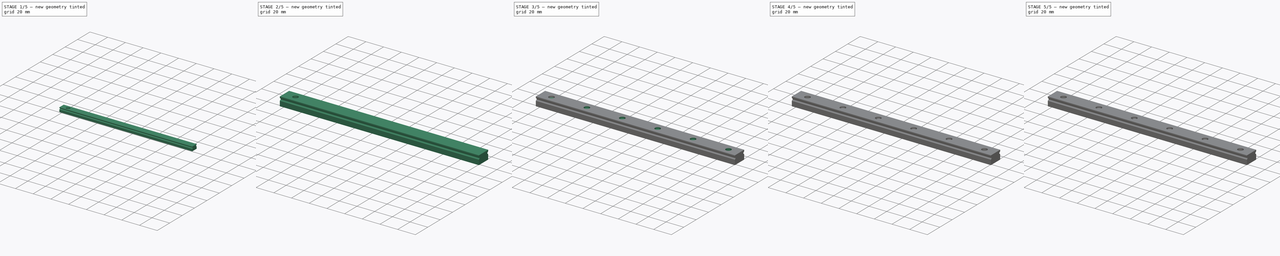
[diagram: build sequence overview — one tinted view per stage of 5, left to right]
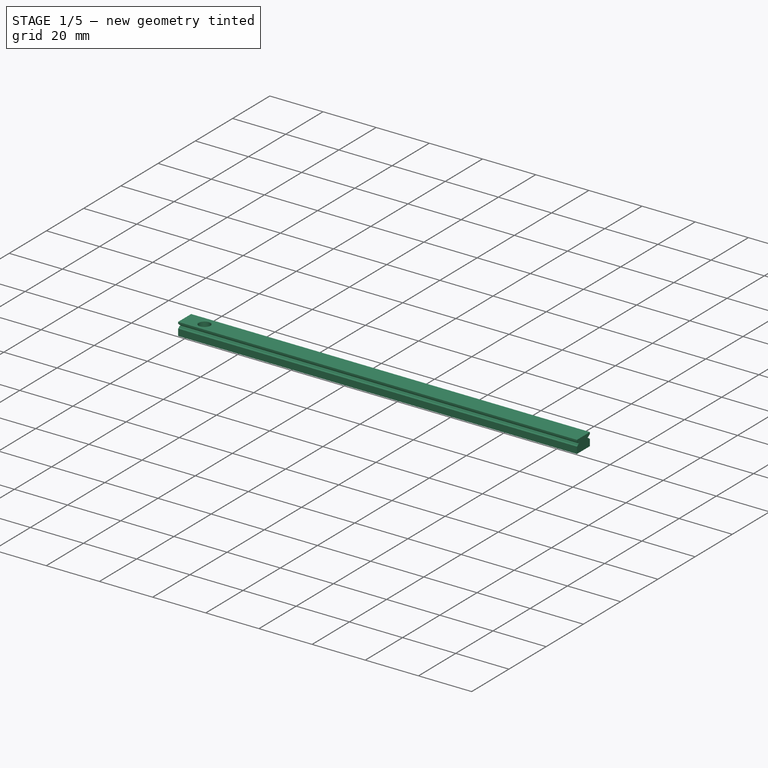
[diagram: stage 1 of 5 — iso view after this stage's code; geometry added in this stage tinted green]
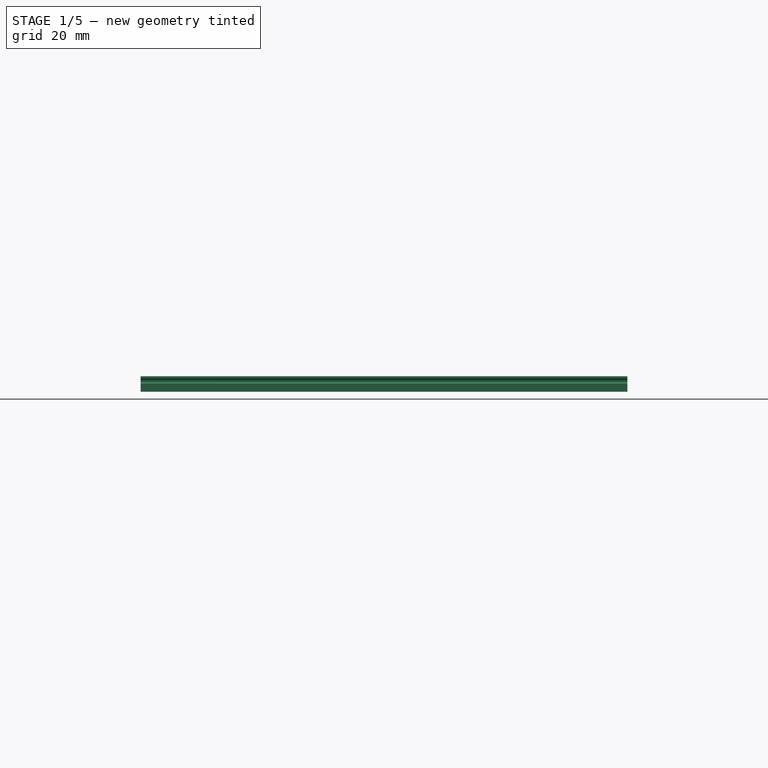
[diagram: stage 1 of 5 — front view after this stage's code; geometry added in this stage tinted green]
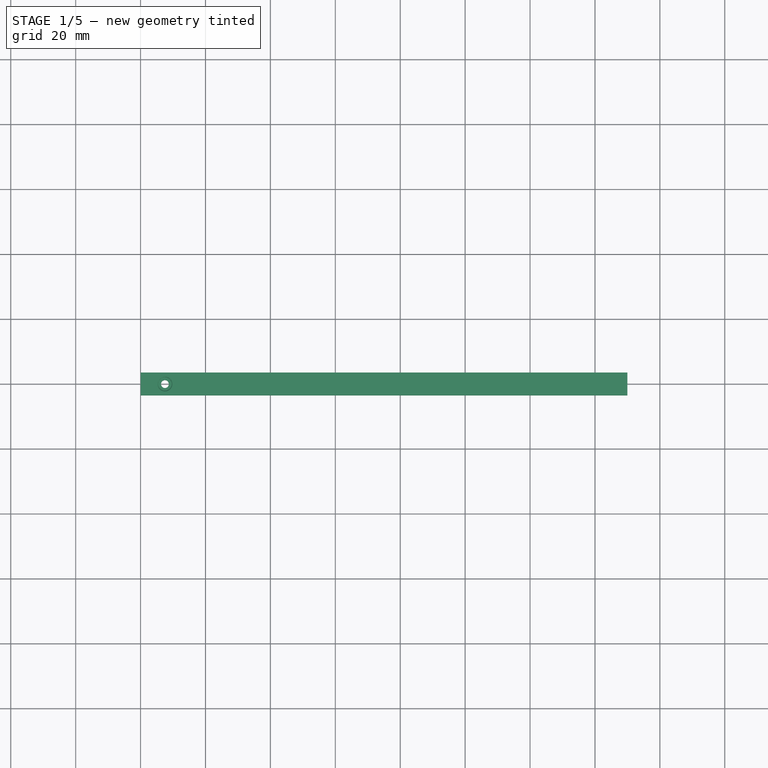
[diagram: stage 1 of 5 — top view after this stage's code; geometry added in this stage tinted green]
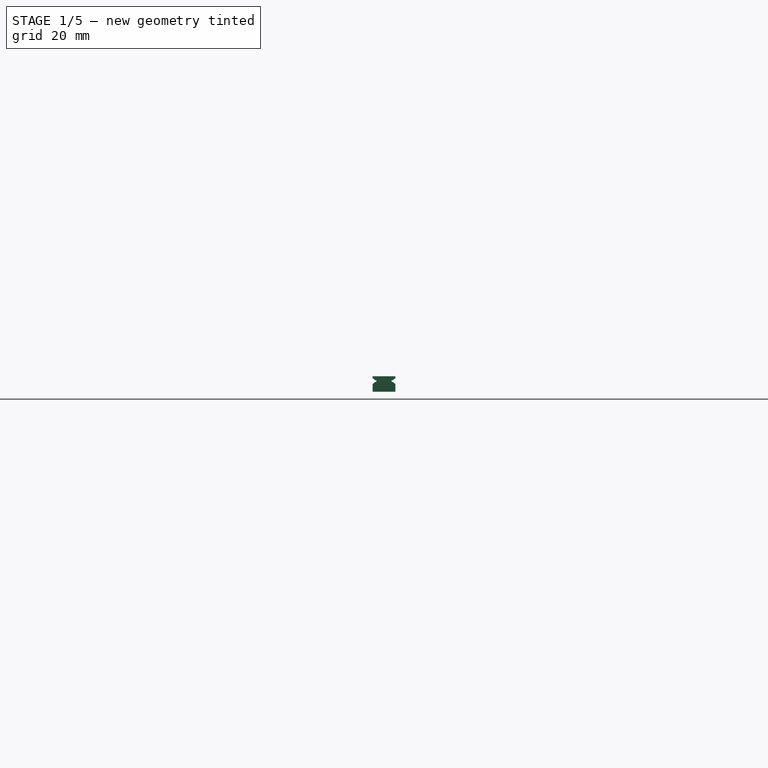
[diagram: stage 1 of 5 — right view after this stage's code; geometry added in this stage tinted green]
FCSTD DOCUMENT  (FreeCAD 0.20R29603 (Git))
Label: mgn9_v2
License: Public Domain
LicenseURL: http://en.wikipedia.org/wiki/Public_domain
objects: Sketcher::SketchObject×16, PartDesign::Pocket×12, App::FeaturePython×8, PartDesign::Pad×4, Spreadsheet::Sheet×4, PartDesign::Chamfer×4, PartDesign::LinearPattern×4, PartDesign::Body×4, App::Part×4, App::TextDocument×2, Part::Feature×1
note: 65 computed .brp shape members not serialized (recipe doc carries the construction recipe); baked Part::Feature solids carry a one-line shape summary decoded from their .brp

FEATURE [PartDesign::Body] Body003  label="Hiwin rail MGN15R"
  Group = -> [Sketch012,Pad006,Sketch013,Pocket011,Sketch014,Pocket012,Sketch015,Pocket013,Chamfer003,LinearPattern003]
  Origin = -> Origin006
  Tip = -> LinearPattern003
FEATURE [Spreadsheet::Sheet] Spreadsheet003  label="Spreadsheet_MGN15"
  cells = A1=Length rail; B1=Длина рельсы, мм; C1(length)=225; A2=Holes distance; B2=Расстояние между отверстиями; C2(holes_distance)=40; A3=Holes number; B3=Количество отверстий; C3(holes_number)==floor((length - min_offset * 2) / holes_distance) + 1; A4=Distance end holes; B4=Расстояние между центрами крайних отверстий; C4(distance)==holes_distance * (holes_number - 1); A5=Offset 1st hole; B5=Позиция 1го отверстия; C5(offset)==(length - distance) / 2; A6=Min offset 1st hole; B6=Минимальное расстояние от края до центра 1го отверстия; C6(min_offset)=5
FEATURE [App::Part] Part002004  label="Hiwin MGN15"
  Group = -> [Body003,Spreadsheet003,Dimension004,Dimension005]
  Origin = -> Origin007
  Placement = pos=(0,-200,0) rot=(0,0,1;0rad)
FEATURE [App::FeaturePython] Dimension006  label="Dimension_Length_MGN7"  # Draft dimension (typed FeaturePython)
  Diameter = false
  Dimline = (0,50,6.5)
  Direction = (0,0,0)
  Distance = 150
  End = (150,0,6.5)
  Normal = (-3e-16,4e-16,1)
  Start = (0,0,6.5)
  expr: .End.x = Pad007.Length
FEATURE [App::FeaturePython] Dimension007  label="Dimension_Offset_MGN7"  # Draft dimension (typed FeaturePython)
  Diameter = false
  Dimline = (0,20,6.5)
  Direction = (0,0,0)
  Distance = 7.5
  End = (7.5,0,6.5)
  Normal = (-3e-16,4e-16,1)
  Start = (0,0,6.5)
  expr: .End.x = Spreadsheet004.offset
FEATURE [Sketcher::SketchObject] Sketch016
  FullyConstrained = true
  MapMode = 5
  Placement = pos=(0,0,0) rot=(0.57735,0.57735,0.57735;2.0944rad)
  Support = -> [YZ_Plane008]
  sketch-geometry (4):
    g0: LineSegment StartX=-3.5 StartY=0 StartZ=0 EndX=3.5 EndY=0 EndZ=0
    g1: LineSegment StartX=3.5 StartY=0 StartZ=0 EndX=3.5 EndY=4.8 EndZ=0
    g2: LineSegment StartX=3.5 StartY=4.8 StartZ=0 EndX=-3.5 EndY=4.8 EndZ=0
    g3: LineSegment StartX=-3.5 StartY=4.8 StartZ=0 EndX=-3.5 EndY=0 EndZ=0
  constraints (11):
    c: Coincident(g0,g1)
    c: Coincident(g1,g2)
    c: Coincident(g2,g3)
    c: Coincident(g3,g0)
    c: Horizontal(g0)
    c: Horizontal(g2)
    c: Vertical(g1)
    c: Vertical(g3)
    c: Symmetric(g0,g0,g-1)
    c: DistanceX(g0,g0) = 7  'width'
    c: DistanceY(g1,g1) = 4.8  'height'
FEATURE [PartDesign::Pad] Pad007
  Direction = (1,-2e-16,3e-16)
  Length = 150
  Length2 = 10
  Placement = pos=(0,0,0) rot=(0.57735,0.57735,0.57735;2.0944rad)
  Profile = -> Sketch016
  ReferenceAxis = -> Sketch016 [N_Axis]
  Type = 0
  expr: Length = Spreadsheet004.length
FEATURE [Sketcher::SketchObject] Sketch017
  FullyConstrained = true
  MapMode = 5
  Placement = pos=(0,0,0) rot=(-0.57735,0.57735,0.57735;4.18879rad)
  Support = -> [YZ_Plane008]
  expr: Constraints[12] = 3.05 + 0.5 / 2
  expr: Constraints[13] = <<Sketch016>>.Constraints.width / 2 + 0.1mm
  sketch-geometry (10):
    g0: ArcOfCircle CenterX=-3.6 CenterY=3.3 CenterZ=0 NormalX=0 NormalY=0 NormalZ=1 AngleXU=0 Radius=0.8 StartAngle=0.317824 EndAngle=5.96536
    g1: LineSegment StartX=-2.84007 StartY=3.55 StartZ=0 EndX=-2.34007 EndY=3.55 EndZ=0
    g2: LineSegment StartX=-2.34007 StartY=3.55 StartZ=0 EndX=-2.34007 EndY=3.05 EndZ=0
    g3: LineSegment StartX=-2.34007 StartY=3.05 StartZ=0 EndX=-2.84007 EndY=3.05 EndZ=0
    g4: LineSegment StartX=-3.6 StartY=3.3 StartZ=0 EndX=-2.34007 EndY=3.3 EndZ=0
    g5: ArcOfCircle CenterX=3.6 CenterY=3.3 CenterZ=0 NormalX=0 NormalY=0 NormalZ=1 AngleXU=0 Radius=0.8 StartAngle=3.45942 EndAngle=9.10695
    g6: LineSegment StartX=2.84007 StartY=3.55 StartZ=0 EndX=2.34007 EndY=3.55 EndZ=0
    g7: LineSegment StartX=2.34007 StartY=3.55 StartZ=0 EndX=2.34007 EndY=3.05 EndZ=0
    g8: LineSegment StartX=2.34007 StartY=3.05 StartZ=0 EndX=2.84007 EndY=3.05 EndZ=0
    g9: LineSegment StartX=3.6 StartY=3.3 StartZ=0 EndX=2.34007 EndY=3.3 EndZ=0
  constraints (29):
    c: Horizontal(g1)
    c: Coincident(g2,g1)
    c: Vertical(g2)
    c: Coincident(g3,g2)
    c: Horizontal(g3)
    c: Coincident(g4,g0)
    c: Horizontal(g4)
    c: Symmetric(g2,g1,g4)
    c: Coincident(g0,g3)
    c: Coincident(g0,g1)
    c: DistanceY(g2,g2) = 0.5
    c: DistanceX(g1,g1) = 0.5
    c: DistanceY(g-1,g0) = 3.3
    c: DistanceX(g0,g-1) = 3.6
    c: Horizontal(g6)
    c: Coincident(g7,g6)
    c: Vertical(g7)
    c: Coincident(g8,g7)
    c: Horizontal(g8)
    c: Coincident(g9,g5)
    c: Horizontal(g9)
    c: Symmetric(g7,g6,g9)
    c: Coincident(g5,g8)
    c: Coincident(g5,g6)
    c: Diameter(g5) = 1.6
    c: Symmetric(g4,g9,g-2)
    c: Equal(g2,g7)
    c: Equal(g1,g6)
    c: Equal(g0,g5)
FEATURE [PartDesign::Pocket] Pocket014  label="Balls cut003"
  BaseFeature = -> Pad007
  Direction = (1,-2e-16,3e-16)
  Length = 5
  Length2 = 5
  Placement = pos=(0,0,0) rot=(0.57735,0.57735,0.57735;2.0944rad)
  Profile = -> Sketch017
  ReferenceAxis = -> Sketch017 [N_Axis]
  Type = 1
FEATURE [Sketcher::SketchObject] Sketch018
  AttachmentOffset = pos=(7.5,0,0) rot=(0,0,1;1.5708rad)
  FullyConstrained = true
  MapMode = 5
  Placement = pos=(7.5,0,0) rot=(0,0,1;1.5708rad)
  Support = -> [XY_Plane008]
  expr: .AttachmentOffset.Base.x = Spreadsheet004.offset
  sketch-geometry (1):
    g0: Circle CenterX=0 CenterY=0 CenterZ=0 NormalX=0 NormalY=0 NormalZ=1 AngleXU=0 Radius=1.2
  constraints (2):
    c: Coincident(g0,g-1)
    c: Diameter(g0) = 2.4
FEATURE [PartDesign::Pocket] Pocket015  label="Screw hole003"
  BaseFeature = -> Pocket014
  Direction = (0,0,-1)
  Length = 5
  Length2 = 5
  Midplane = true
  Placement = pos=(0,0,0) rot=(0.57735,0.57735,0.57735;2.0944rad)
  Profile = -> Sketch018
  ReferenceAxis = -> Sketch018 [N_Axis]
  Type = 1
FEATURE [Sketcher::SketchObject] Sketch019
  AttachmentOffset = pos=(7.5,0,4.8) rot=(0,0,1;1.5708rad)
  FullyConstrained = true
  MapMode = 5
  Placement = pos=(7.5,0,4.8) rot=(0,0,1;1.5708rad)
  Support = -> [XY_Plane008]
  expr: .AttachmentOffset.Base.x = Spreadsheet004.offset
  expr: .AttachmentOffset.Base.z = Sketch016.Constraints.height
  sketch-geometry (1):
    g0: Circle CenterX=0 CenterY=0 CenterZ=0 NormalX=0 NormalY=0 NormalZ=1 AngleXU=0 Radius=2.1
  constraints (2):
    c: Coincident(g0,g-1)
    c: Diameter(g0) = 4.2
FEATURE [PartDesign::Pocket] Pocket016  label="Screw head cut003"
  BaseFeature = -> Pocket015
  Direction = (0,0,-1)
  Length = 3.5
  Length2 = 5
  Placement = pos=(0,0,0) rot=(0.57735,0.57735,0.57735;2.0944rad)
  Profile = -> Sketch019
  ReferenceAxis = -> Sketch019 [N_Axis]
  Type = 0
FEATURE [PartDesign::Chamfer] Chamfer004
  Angle = 45
  Base = -> Pocket016 [Edge47]
  BaseFeature = -> Pocket016
  ChamferType = 0
  FlipDirection = false
  Placement = pos=(0,0,0) rot=(0.57735,0.57735,0.57735;2.0944rad)
  Size = 0.2
  Size2 = 1
  SupportTransform = false
  UseAllEdges = false
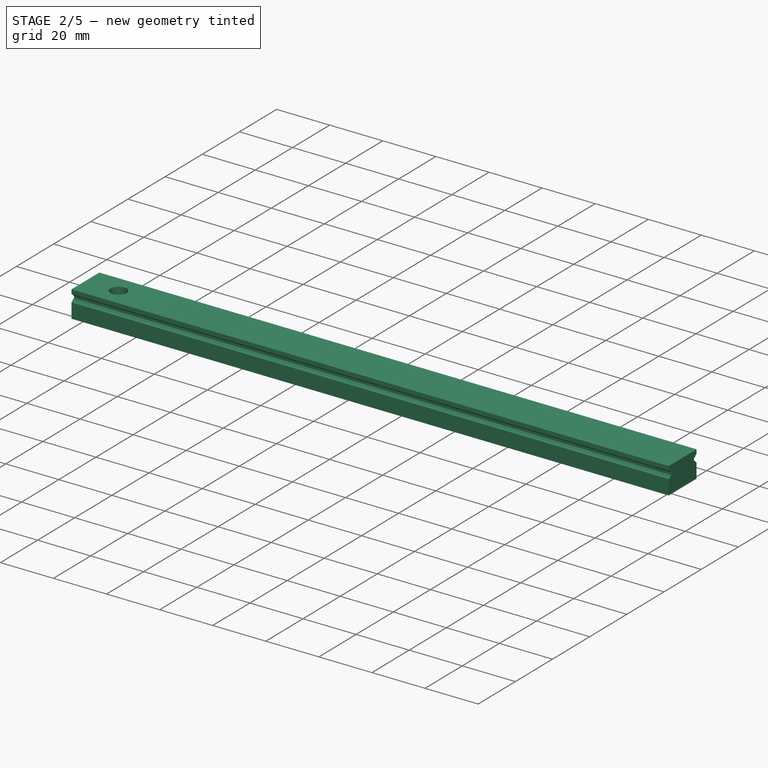
[diagram: stage 2 of 5 — iso view after this stage's code; geometry added in this stage tinted green]
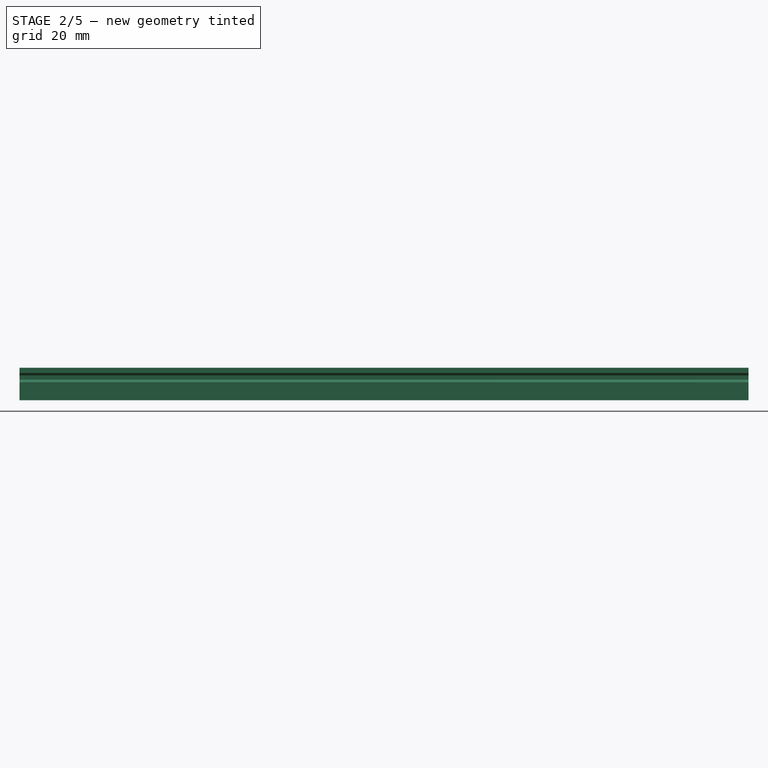
[diagram: stage 2 of 5 — front view after this stage's code; geometry added in this stage tinted green]
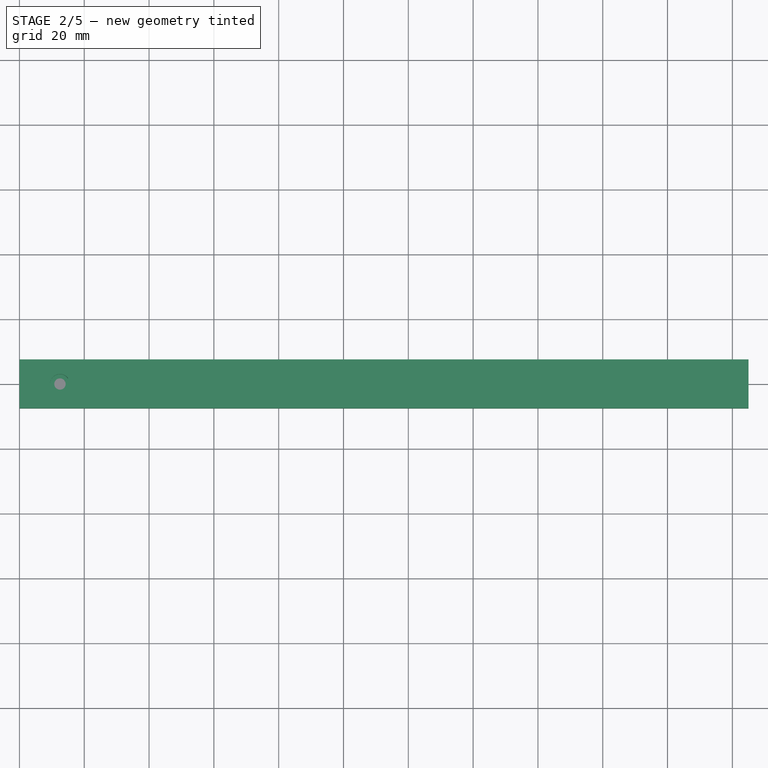
[diagram: stage 2 of 5 — top view after this stage's code; geometry added in this stage tinted green]
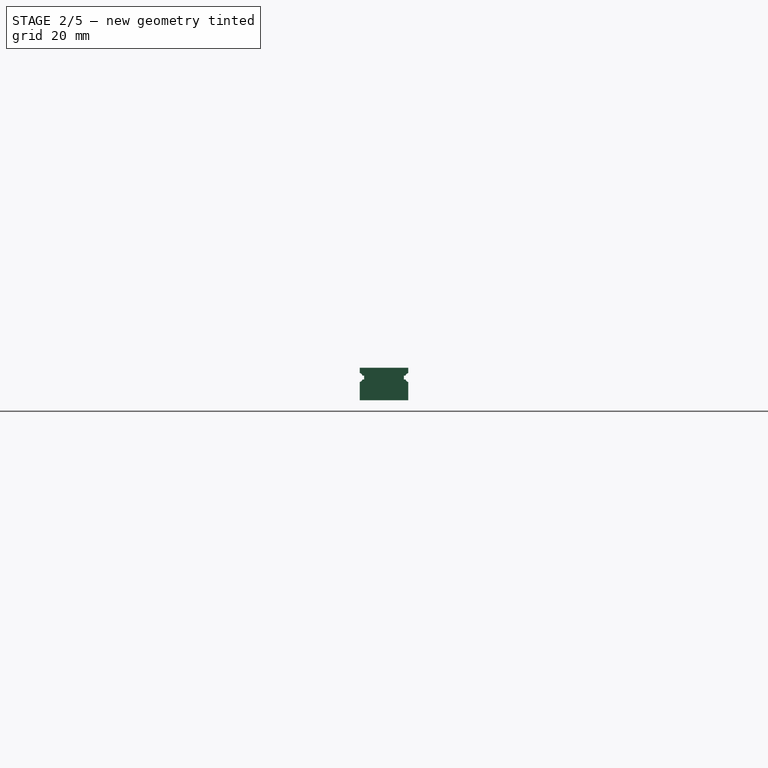
[diagram: stage 2 of 5 — right view after this stage's code; geometry added in this stage tinted green]
FEATURE [PartDesign::Body] Body002  label="Hiwin rail MGN12R"
  Group = -> [Sketch008,Pad005,Sketch009,Pocket008,Sketch010,Pocket009,Sketch011,Pocket010,Chamfer002,LinearPattern002]
  Origin = -> Origin004
  Tip = -> LinearPattern002
FEATURE [Spreadsheet::Sheet] Spreadsheet002  label="Spreadsheet_MGN12"
  cells = A1=Length rail; B1=Длина рельсы, мм; C1(length)=200; A2=Holes distance; B2=Расстояние между отверстиями; C2(holes_distance)=25; A3=Holes number; B3=Количество отверстий; C3(holes_number)==floor((length - min_offset * 2) / holes_distance) + 1; A4=Distance end holes; B4=Расстояние между центрами крайних отверстий; C4(distance)==holes_distance * (holes_number - 1); A5=Offset 1st hole; B5=Позиция 1го отверстия; C5(offset)==(length - distance) / 2; A6=Min offset 1st hole; B6=Минимальное расстояние от края до центра 1го отверстия; C6(min_offset)=5
FEATURE [App::Part] Part002003  label="Hiwin MGN12"
  Group = -> [Body002,Spreadsheet002,Dimension002,Dimension003]
  Origin = -> Origin005
  Placement = pos=(0,-100,0) rot=(0,0,1;0rad)
FEATURE [App::FeaturePython] Dimension004  label="Dimension_Length_MGN15"  # Draft dimension (typed FeaturePython)
  Diameter = false
  Dimline = (0,50,6.5)
  Direction = (0,0,0)
  Distance = 225
  End = (225,0,6.5)
  Normal = (-3e-16,4e-16,1)
  Start = (0,0,6.5)
  expr: .End.x = Pad006.Length
FEATURE [App::FeaturePython] Dimension005  label="Dimension_Offset_MGN15"  # Draft dimension (typed FeaturePython)
  Diameter = false
  Dimline = (0,20,6.5)
  Direction = (0,0,0)
  Distance = 12.5
  End = (12.5,0,6.5)
  Normal = (-3e-16,4e-16,1)
  Start = (0,0,6.5)
  expr: .End.x = Spreadsheet003.offset
FEATURE [Sketcher::SketchObject] Sketch012
  FullyConstrained = true
  MapMode = 5
  Placement = pos=(0,0,0) rot=(0.57735,0.57735,0.57735;2.0944rad)
  Support = -> [YZ_Plane006]
  sketch-geometry (4):
    g0: LineSegment StartX=-7.5 StartY=0 StartZ=0 EndX=7.5 EndY=0 EndZ=0
    g1: LineSegment StartX=7.5 StartY=0 StartZ=0 EndX=7.5 EndY=10 EndZ=0
    g2: LineSegment StartX=7.5 StartY=10 StartZ=0 EndX=-7.5 EndY=10 EndZ=0
    g3: LineSegment StartX=-7.5 StartY=10 StartZ=0 EndX=-7.5 EndY=0 EndZ=0
  constraints (11):
    c: Coincident(g0,g1)
    c: Coincident(g1,g2)
    c: Coincident(g2,g3)
    c: Coincident(g3,g0)
    c: Horizontal(g0)
    c: Horizontal(g2)
    c: Vertical(g1)
    c: Vertical(g3)
    c: Symmetric(g0,g0,g-1)
    c: DistanceX(g0,g0) = 15  'width'
    c: DistanceY(g1,g1) = 10  'height'
FEATURE [PartDesign::Pad] Pad006
  Direction = (1,-2e-16,3e-16)
  Length = 225
  Length2 = 10
  Placement = pos=(0,0,0) rot=(0.57735,0.57735,0.57735;2.0944rad)
  Profile = -> Sketch012
  ReferenceAxis = -> Sketch012 [N_Axis]
  Type = 0
  expr: Length = Spreadsheet003.length
FEATURE [Sketcher::SketchObject] Sketch013
  FullyConstrained = true
  MapMode = 5
  Placement = pos=(0,0,0) rot=(-0.57735,0.57735,0.57735;4.18879rad)
  Support = -> [YZ_Plane006]
  expr: Constraints[13] = <<Sketch012>>.Constraints.width / 2 + 0.5mm
  sketch-geometry (10):
    g0: ArcOfCircle CenterX=-8 CenterY=7 CenterZ=0 NormalX=0 NormalY=0 NormalZ=1 AngleXU=0 Radius=1.5 StartAngle=0.411517 EndAngle=5.87167
    g1: LineSegment StartX=-6.62523 StartY=7.6 StartZ=0 EndX=-6.12523 EndY=7.6 EndZ=0
    g2: LineSegment StartX=-6.12523 StartY=7.6 StartZ=0 EndX=-6.12523 EndY=6.4 EndZ=0
    g3: LineSegment StartX=-6.12523 StartY=6.4 StartZ=0 EndX=-6.62523 EndY=6.4 EndZ=0
    g4: LineSegment StartX=-8 StartY=7 StartZ=0 EndX=-6.12523 EndY=7 EndZ=0
    g5: ArcOfCircle CenterX=8 CenterY=7 CenterZ=0 NormalX=0 NormalY=0 NormalZ=1 AngleXU=0 Radius=1.5 StartAngle=3.55311 EndAngle=9.01326
    g6: LineSegment StartX=6.62523 StartY=7.6 StartZ=0 EndX=6.12523 EndY=7.6 EndZ=0
    g7: LineSegment StartX=6.12523 StartY=7.6 StartZ=0 EndX=6.12523 EndY=6.4 EndZ=0
    g8: LineSegment StartX=6.12523 StartY=6.4 StartZ=0 EndX=6.62523 EndY=6.4 EndZ=0
    g9: LineSegment StartX=8 StartY=7 StartZ=0 EndX=6.12523 EndY=7 EndZ=0
  constraints (29):
    c: Horizontal(g1)
    c: Coincident(g2,g1)
    c: Vertical(g2)
    c: Coincident(g3,g2)
    c: Horizontal(g3)
    c: Coincident(g4,g0)
    c: Horizontal(g4)
    c: Symmetric(g2,g1,g4)
    c: Coincident(g0,g3)
    c: Coincident(g0,g1)
    c: DistanceY(g2,g2) = 1.2
    c: DistanceX(g1,g1) = 0.5
    c: DistanceY(g-1,g0) = 7
    c: DistanceX(g0,g-1) = 8
    c: Horizontal(g6)
    c: Coincident(g7,g6)
    c: Vertical(g7)
    c: Coincident(g8,g7)
    c: Horizontal(g8)
    c: Coincident(g9,g5)
    c: Horizontal(g9)
    c: Symmetric(g7,g6,g9)
    c: Coincident(g5,g8)
    c: Coincident(g5,g6)
    c: Diameter(g5) = 3
    c: Symmetric(g4,g9,g-2)
    c: Equal(g2,g7)
    c: Equal(g1,g6)
    c: Equal(g0,g5)
FEATURE [PartDesign::Pocket] Pocket011  label="Balls cut002"
  BaseFeature = -> Pad006
  Direction = (1,-2e-16,3e-16)
  Length = 5
  Length2 = 5
  Placement = pos=(0,0,0) rot=(0.57735,0.57735,0.57735;2.0944rad)
  Profile = -> Sketch013
  ReferenceAxis = -> Sketch013 [N_Axis]
  Type = 1
FEATURE [Sketcher::SketchObject] Sketch014
  AttachmentOffset = pos=(12.5,0,0) rot=(0,0,1;1.5708rad)
  FullyConstrained = true
  MapMode = 5
  Placement = pos=(12.5,0,0) rot=(0,0,1;1.5708rad)
  Support = -> [XY_Plane006]
  expr: .AttachmentOffset.Base.x = Spreadsheet003.offset
  sketch-geometry (1):
    g0: Circle CenterX=0 CenterY=0 CenterZ=0 NormalX=0 NormalY=0 NormalZ=1 AngleXU=0 Radius=1.75
  constraints (2):
    c: Coincident(g0,g-1)
    c: Diameter(g0) = 3.5
FEATURE [PartDesign::Pocket] Pocket012  label="Screw hole002"
  BaseFeature = -> Pocket011
  Direction = (0,0,-1)
  Length = 5
  Length2 = 5
  Midplane = true
  Placement = pos=(0,0,0) rot=(0.57735,0.57735,0.57735;2.0944rad)
  Profile = -> Sketch014
  ReferenceAxis = -> Sketch014 [N_Axis]
  Type = 1
FEATURE [Sketcher::SketchObject] Sketch015
  AttachmentOffset = pos=(12.5,0,10) rot=(0,0,1;1.5708rad)
  FullyConstrained = true
  MapMode = 5
  Placement = pos=(12.5,0,10) rot=(0,0,1;1.5708rad)
  Support = -> [XY_Plane006]
  expr: .AttachmentOffset.Base.x = Spreadsheet003.offset
  expr: .AttachmentOffset.Base.z = Sketch012.Constraints.height
  sketch-geometry (1):
    g0: Circle CenterX=0 CenterY=0 CenterZ=0 NormalX=0 NormalY=0 NormalZ=1 AngleXU=0 Radius=3
  constraints (2):
    c: Coincident(g0,g-1)
    c: Diameter(g0) = 6
FEATURE [PartDesign::Pocket] Pocket013  label="Screw head cut002"
  BaseFeature = -> Pocket012
  Direction = (0,0,-1)
  Length = 4.5
  Length2 = 5
  Placement = pos=(0,0,0) rot=(0.57735,0.57735,0.57735;2.0944rad)
  Profile = -> Sketch015
  ReferenceAxis = -> Sketch015 [N_Axis]
  Type = 0
FEATURE [PartDesign::LinearPattern] LinearPattern004
  BaseFeature = -> Chamfer004
  Direction = -> Sketch018 [V_Axis]
  Length = 135
  Occurrences = 10
  Originals = -> [Pocket015,Pocket016,Chamfer004]
  Placement = pos=(0,0,0) rot=(0.57735,0.57735,0.57735;2.0944rad)
  Reversed = true
  expr: Length = Spreadsheet004.distance
  expr: Occurrences = Spreadsheet004.holes_number
FEATURE [PartDesign::Body] Body004  label="Hiwin rail MGN7R"
  Group = -> [Sketch016,Pad007,Sketch017,Pocket014,Sketch018,Pocket015,Sketch019,Pocket016,Chamfer004,LinearPattern004]
  Origin = -> Origin008
  Tip = -> LinearPattern004
FEATURE [Spreadsheet::Sheet] Spreadsheet004  label="Spreadsheet_MGN7"
  cells = A1=Length rail; B1=Длина рельсы, мм; C1(length)=150; A2=Holes distance; B2=Расстояние между отверстиями; C2(holes_distance)=15; A3=Holes number; B3=Количество отверстий; C3(holes_number)==floor((length - min_offset * 2) / holes_distance) + 1; A4=Distance end holes; B4=Расстояние между центрами крайних отверстий; C4(distance)==holes_distance * (holes_number - 1); A5=Offset 1st hole; B5=Позиция 1го отверстия; C5(offset)==(length - distance) / 2; A6=Min offset 1st hole; B6=Минимальное расстояние от края до центра 1го отверстия; C6(min_offset)=5
FEATURE [App::Part] Part002005  label="Hiwin MGN7"
  Group = -> [Body004,Spreadsheet004,Dimension006,Dimension007]
  Origin = -> Origin009
  Placement = pos=(0,100,0) rot=(0,0,1;0rad)
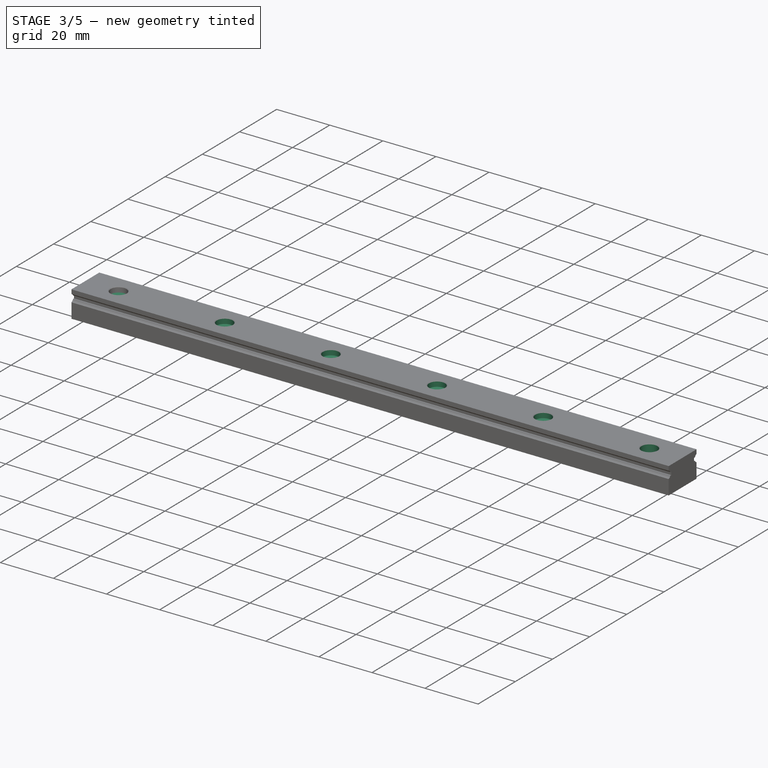
[diagram: stage 3 of 5 — iso view after this stage's code; geometry added in this stage tinted green]
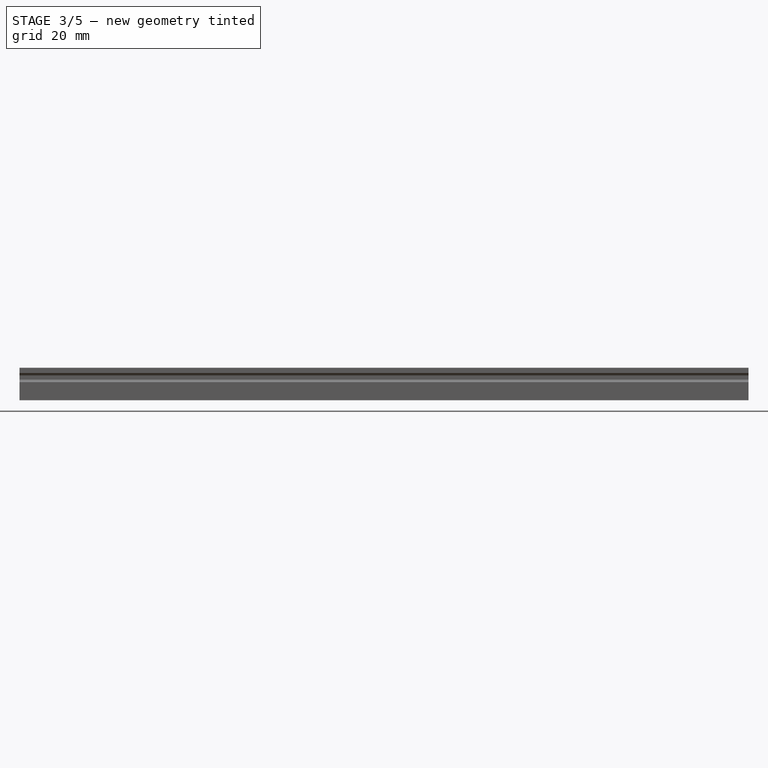
[diagram: stage 3 of 5 — front view after this stage's code; geometry added in this stage tinted green]
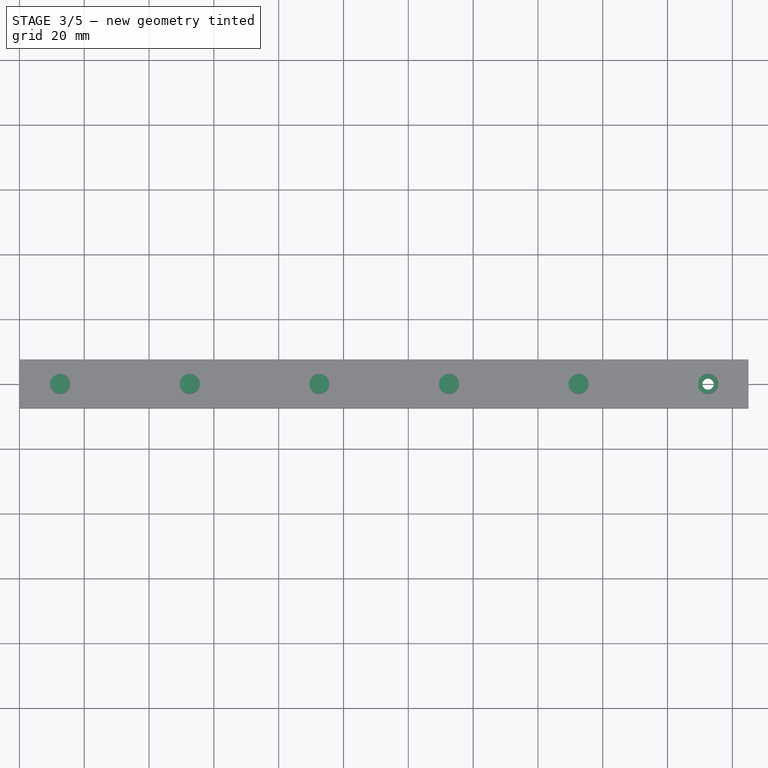
[diagram: stage 3 of 5 — top view after this stage's code; geometry added in this stage tinted green]
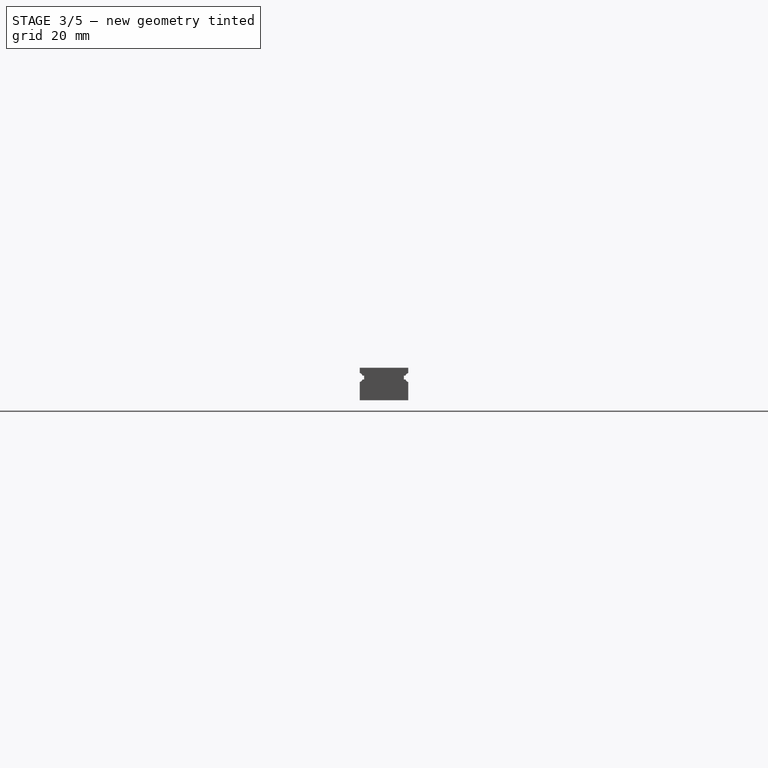
[diagram: stage 3 of 5 — right view after this stage's code; geometry added in this stage tinted green]
FEATURE [PartDesign::Body] Body001  label="Hiwin rail MGN9R"
  Group = -> [Sketch004,Pad004,Sketch005,Pocket005,Sketch006,Pocket006,Sketch007,Pocket007,Chamfer001,LinearPattern001]
  Origin = -> Origin002
  Tip = -> LinearPattern001
FEATURE [App::FeaturePython] Dimension  label="Dimension_Length_MGN9"  # Draft dimension (typed FeaturePython)
  Diameter = false
  Dimline = (0,50,6.5)
  Direction = (0,0,0)
  Distance = 175
  End = (175,0,6.5)
  Normal = (-3e-16,4e-16,1)
  Start = (0,0,6.5)
  expr: .End.x = Pad004.Length
FEATURE [App::FeaturePython] Dimension001  label="Dimension_Offset_MGN9"  # Draft dimension (typed FeaturePython)
  Diameter = false
  Dimline = (0,20,6.5)
  Direction = (0,0,0)
  Distance = 7.5
  End = (7.5,0,6.5)
  Normal = (-3e-16,4e-16,1)
  Start = (0,0,6.5)
  expr: .End.x = Spreadsheet001.offset
FEATURE [Part::Feature] Part__Feature008002002006397  label="Каретка MGN9-H"
  Placement = pos=(52,0,6) rot=(0.57735,0.57735,0.57735;2.0944rad)
  shape: bbox 40.67 x 20.01 x 8.005 mm, 245 faces, 9 solids (baked)
FEATURE [App::Part] Part002002  label="Hiwin MGN9"
  Group = -> [Body001,Spreadsheet001,Text_document002,Text_document003,Dimension,Dimension001,Part__Feature008002002006397]
  Origin = -> Origin003
FEATURE [App::FeaturePython] Dimension002  label="Dimension_Length_MGN12"  # Draft dimension (typed FeaturePython)
  Diameter = false
  Dimline = (0,50,6.5)
  Direction = (0,0,0)
  Distance = 200
  End = (200,0,6.5)
  Normal = (-3e-16,4e-16,1)
  Start = (0,0,6.5)
  expr: .End.x = Pad005.Length
FEATURE [App::FeaturePython] Dimension003  label="Dimension_Offset_MGN12"  # Draft dimension (typed FeaturePython)
  Diameter = false
  Dimline = (0,20,6.5)
  Direction = (0,0,0)
  Distance = 12.5
  End = (12.5,0,6.5)
  Normal = (-3e-16,4e-16,1)
  Start = (0,0,6.5)
  expr: .End.x = Spreadsheet002.offset
FEATURE [Sketcher::SketchObject] Sketch008
  FullyConstrained = true
  MapMode = 5
  Placement = pos=(0,0,0) rot=(0.57735,0.57735,0.57735;2.0944rad)
  Support = -> [YZ_Plane004]
  sketch-geometry (4):
    g0: LineSegment StartX=-6 StartY=0 StartZ=0 EndX=6 EndY=0 EndZ=0
    g1: LineSegment StartX=6 StartY=0 StartZ=0 EndX=6 EndY=8 EndZ=0
    g2: LineSegment StartX=6 StartY=8 StartZ=0 EndX=-6 EndY=8 EndZ=0
    g3: LineSegment StartX=-6 StartY=8 StartZ=0 EndX=-6 EndY=0 EndZ=0
  constraints (11):
    c: Coincident(g0,g1)
    c: Coincident(g1,g2)
    c: Coincident(g2,g3)
    c: Coincident(g3,g0)
    c: Horizontal(g0)
    c: Horizontal(g2)
    c: Vertical(g1)
    c: Vertical(g3)
    c: Symmetric(g0,g0,g-1)
    c: DistanceX(g0,g0) = 12  'width'
    c: DistanceY(g1,g1) = 8  'height'
FEATURE [PartDesign::Pad] Pad005
  Direction = (1,-2e-16,3e-16)
  Length = 200
  Length2 = 10
  Placement = pos=(0,0,0) rot=(0.57735,0.57735,0.57735;2.0944rad)
  Profile = -> Sketch008
  ReferenceAxis = -> Sketch008 [N_Axis]
  Type = 0
  expr: Length = Spreadsheet002.length
FEATURE [Sketcher::SketchObject] Sketch009
  FullyConstrained = true
  MapMode = 5
  Placement = pos=(0,0,0) rot=(-0.57735,0.57735,0.57735;4.18879rad)
  Support = -> [YZ_Plane004]
  expr: Constraints[13] = <<Sketch008>>.Constraints.width / 2 + 0.3mm
  sketch-geometry (10):
    g0: ArcOfCircle CenterX=-6.3 CenterY=5.5 CenterZ=0 NormalX=0 NormalY=0 NormalZ=1 AngleXU=0 Radius=1.2 StartAngle=0.429775 EndAngle=5.85341
    g1: LineSegment StartX=-5.20913 StartY=6 StartZ=0 EndX=-4.70913 EndY=6 EndZ=0
    g2: LineSegment StartX=-4.70913 StartY=6 StartZ=0 EndX=-4.70913 EndY=5 EndZ=0
    g3: LineSegment StartX=-4.70913 StartY=5 StartZ=0 EndX=-5.20913 EndY=5 EndZ=0
    g4: LineSegment StartX=-6.3 StartY=5.5 StartZ=0 EndX=-4.70913 EndY=5.5 EndZ=0
    g5: ArcOfCircle CenterX=6.3 CenterY=5.5 CenterZ=0 NormalX=0 NormalY=0 NormalZ=1 AngleXU=0 Radius=1.2 StartAngle=3.57137 EndAngle=8.995
    g6: LineSegment StartX=5.20913 StartY=6 StartZ=0 EndX=4.70913 EndY=6 EndZ=0
    g7: LineSegment StartX=4.70913 StartY=6 StartZ=0 EndX=4.70913 EndY=5 EndZ=0
    g8: LineSegment StartX=4.70913 StartY=5 StartZ=0 EndX=5.20913 EndY=5 EndZ=0
    g9: LineSegment StartX=6.3 StartY=5.5 StartZ=0 EndX=4.70913 EndY=5.5 EndZ=0
  constraints (29):
    c: Horizontal(g1)
    c: Coincident(g2,g1)
    c: Vertical(g2)
    c: Coincident(g3,g2)
    c: Horizontal(g3)
    c: Coincident(g4,g0)
    c: Horizontal(g4)
    c: Symmetric(g2,g1,g4)
    c: Coincident(g0,g3)
    c: Coincident(g0,g1)
    c: DistanceY(g2,g2) = 1
    c: DistanceX(g1,g1) = 0.5
    c: DistanceY(g-1,g0) = 5.5
    c: DistanceX(g0,g-1) = 6.3
    c: Horizontal(g6)
    c: Coincident(g7,g6)
    c: Vertical(g7)
    c: Coincident(g8,g7)
    c: Horizontal(g8)
    c: Coincident(g9,g5)
    c: Horizontal(g9)
    c: Symmetric(g7,g6,g9)
    c: Coincident(g5,g8)
    c: Coincident(g5,g6)
    c: Diameter(g5) = 2.4
    c: Symmetric(g4,g9,g-2)
    c: Equal(g2,g7)
    c: Equal(g1,g6)
    c: Equal(g0,g5)
FEATURE [PartDesign::Pocket] Pocket008  label="Balls cut001"
  BaseFeature = -> Pad005
  Direction = (1,-2e-16,3e-16)
  Length = 5
  Length2 = 5
  Placement = pos=(0,0,0) rot=(0.57735,0.57735,0.57735;2.0944rad)
  Profile = -> Sketch009
  ReferenceAxis = -> Sketch009 [N_Axis]
  Type = 1
FEATURE [PartDesign::Chamfer] Chamfer003
  Angle = 45
  Base = -> Pocket013 [Edge47]
  BaseFeature = -> Pocket013
  ChamferType = 0
  FlipDirection = false
  Placement = pos=(0,0,0) rot=(0.57735,0.57735,0.57735;2.0944rad)
  Size = 0.2
  Size2 = 1
  SupportTransform = false
  UseAllEdges = false
FEATURE [PartDesign::LinearPattern] LinearPattern003
  BaseFeature = -> Chamfer003
  Direction = -> Sketch014 [V_Axis]
  Length = 200
  Occurrences = 6
  Originals = -> [Pocket012,Pocket013,Chamfer003]
  Placement = pos=(0,0,0) rot=(0.57735,0.57735,0.57735;2.0944rad)
  Reversed = true
  expr: Length = Spreadsheet003.distance
  expr: Occurrences = Spreadsheet003.holes_number
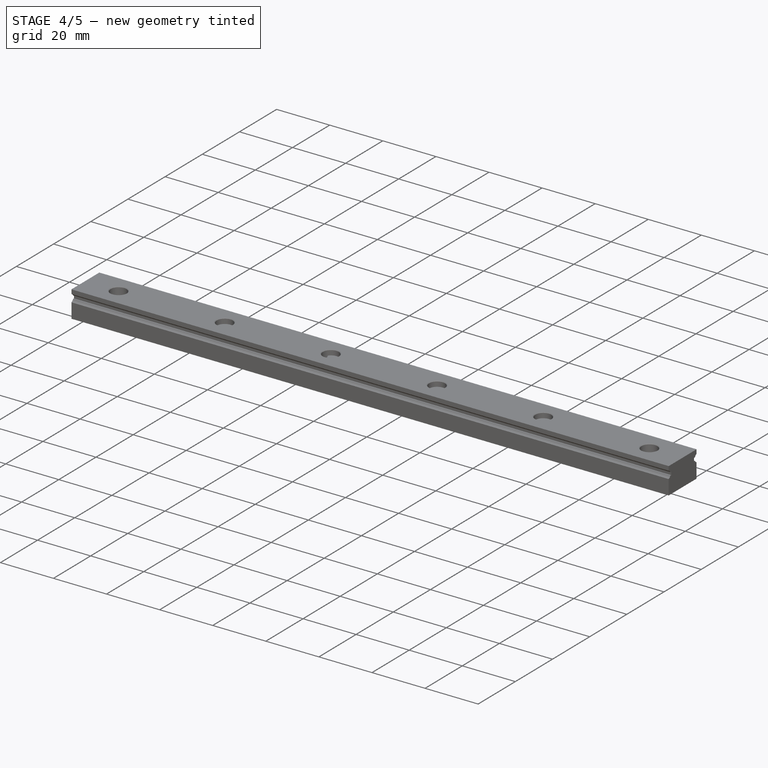
[diagram: stage 4 of 5 — iso view after this stage's code; geometry added in this stage tinted green]
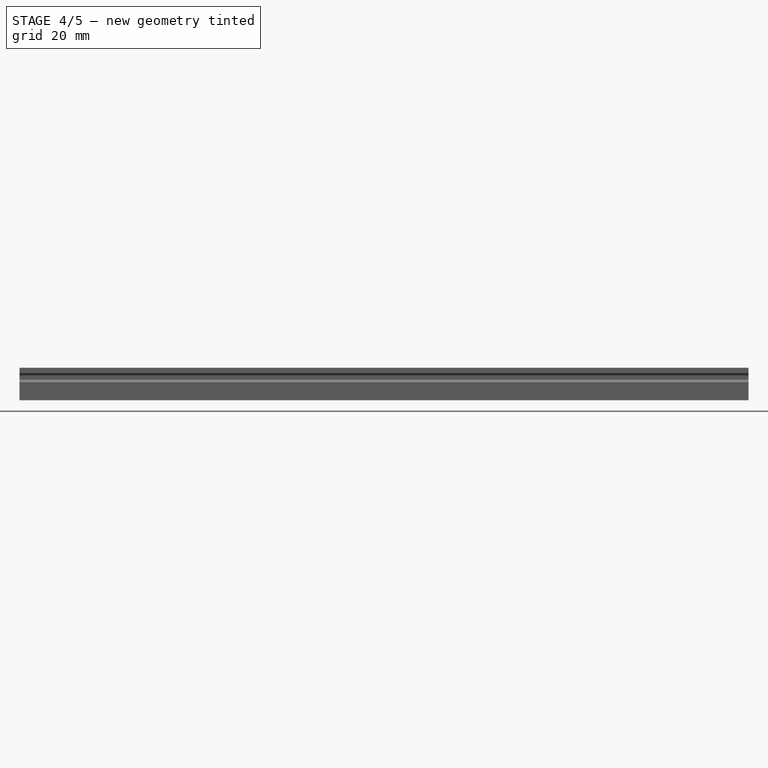
[diagram: stage 4 of 5 — front view after this stage's code; geometry added in this stage tinted green]
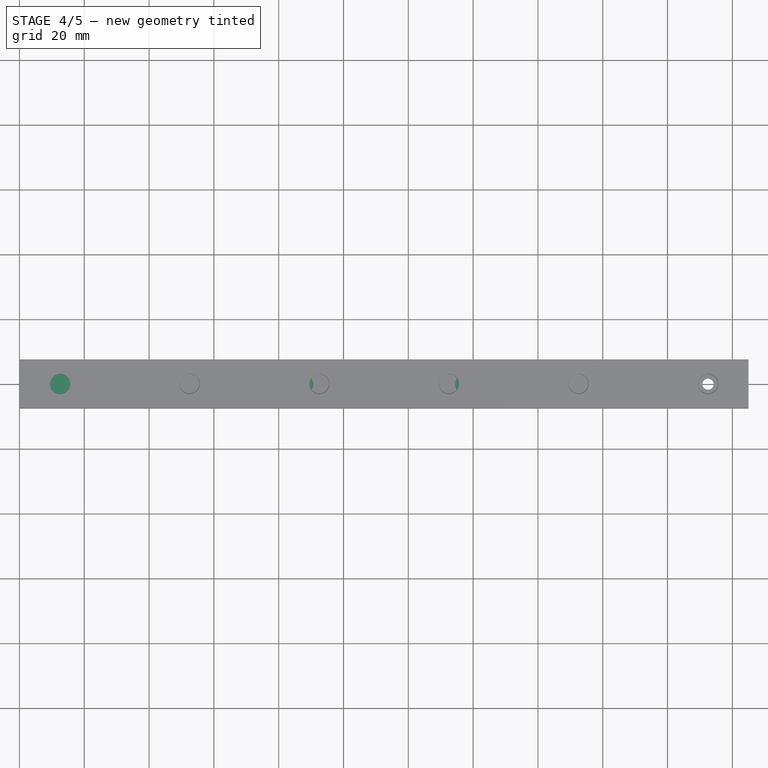
[diagram: stage 4 of 5 — top view after this stage's code; geometry added in this stage tinted green]
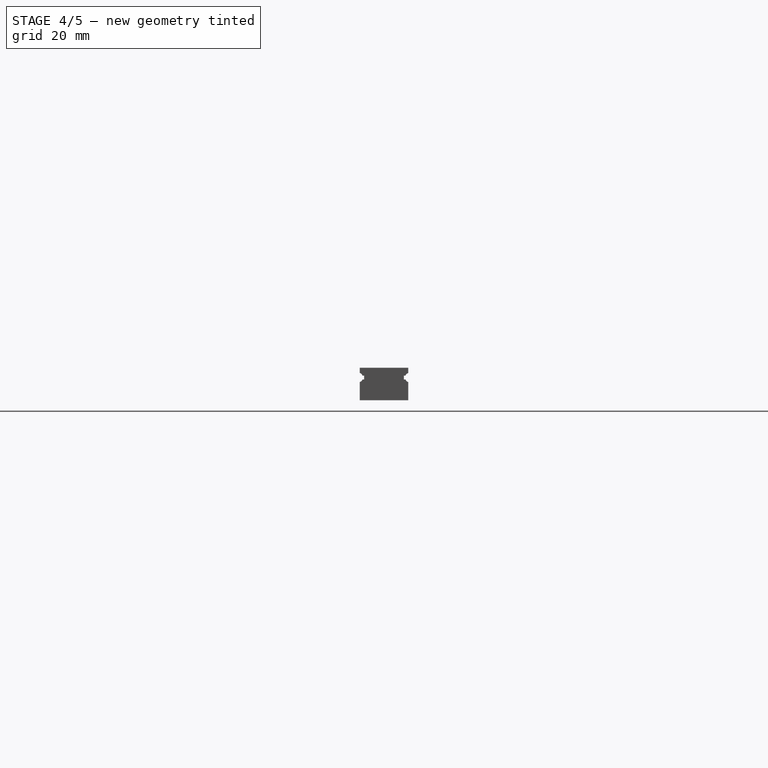
[diagram: stage 4 of 5 — right view after this stage's code; geometry added in this stage tinted green]
FEATURE [Sketcher::SketchObject] Sketch004
  FullyConstrained = true
  MapMode = 5
  Placement = pos=(0,0,0) rot=(0.57735,0.57735,0.57735;2.0944rad)
  Support = -> [YZ_Plane002]
  sketch-geometry (4):
    g0: LineSegment StartX=-4.5 StartY=0 StartZ=0 EndX=4.5 EndY=0 EndZ=0
    g1: LineSegment StartX=4.5 StartY=0 StartZ=0 EndX=4.5 EndY=6.5 EndZ=0
    g2: LineSegment StartX=4.5 StartY=6.5 StartZ=0 EndX=-4.5 EndY=6.5 EndZ=0
    g3: LineSegment StartX=-4.5 StartY=6.5 StartZ=0 EndX=-4.5 EndY=0 EndZ=0
  constraints (11):
    c: Coincident(g0,g1)
    c: Coincident(g1,g2)
    c: Coincident(g2,g3)
    c: Coincident(g3,g0)
    c: Horizontal(g0)
    c: Horizontal(g2)
    c: Vertical(g1)
    c: Vertical(g3)
    c: Symmetric(g0,g0,g-1)
    c: DistanceX(g0,g0) = 9  'width'
    c: DistanceY(g1,g1) = 6.5  'height'
FEATURE [PartDesign::Pad] Pad004
  Direction = (1,-2e-16,3e-16)
  Length = 175
  Length2 = 10
  Placement = pos=(0,0,0) rot=(0.57735,0.57735,0.57735;2.0944rad)
  Profile = -> Sketch004
  ReferenceAxis = -> Sketch004 [N_Axis]
  Type = 0
  expr: Length = Spreadsheet001.length
FEATURE [Sketcher::SketchObject] Sketch010
  AttachmentOffset = pos=(12.5,0,0) rot=(0,0,1;1.5708rad)
  FullyConstrained = true
  MapMode = 5
  Placement = pos=(12.5,0,0) rot=(0,0,1;1.5708rad)
  Support = -> [XY_Plane004]
  expr: .AttachmentOffset.Base.x = Spreadsheet002.offset
  sketch-geometry (1):
    g0: Circle CenterX=0 CenterY=0 CenterZ=0 NormalX=0 NormalY=0 NormalZ=1 AngleXU=0 Radius=1.75
  constraints (2):
    c: Coincident(g0,g-1)
    c: Diameter(g0) = 3.5
FEATURE [PartDesign::Pocket] Pocket009  label="Screw hole001"
  BaseFeature = -> Pocket008
  Direction = (0,0,-1)
  Length = 5
  Length2 = 5
  Midplane = true
  Placement = pos=(0,0,0) rot=(0.57735,0.57735,0.57735;2.0944rad)
  Profile = -> Sketch010
  ReferenceAxis = -> Sketch010 [N_Axis]
  Type = 1
FEATURE [Sketcher::SketchObject] Sketch011
  AttachmentOffset = pos=(12.5,0,8) rot=(0,0,1;1.5708rad)
  FullyConstrained = true
  MapMode = 5
  Placement = pos=(12.5,0,8) rot=(0,0,1;1.5708rad)
  Support = -> [XY_Plane004]
  expr: .AttachmentOffset.Base.x = Spreadsheet002.offset
  expr: .AttachmentOffset.Base.z = Sketch008.Constraints.height
  sketch-geometry (1):
    g0: Circle CenterX=0 CenterY=0 CenterZ=0 NormalX=0 NormalY=0 NormalZ=1 AngleXU=0 Radius=3
  constraints (2):
    c: Coincident(g0,g-1)
    c: Diameter(g0) = 6
FEATURE [PartDesign::Pocket] Pocket010  label="Screw head cut001"
  BaseFeature = -> Pocket009
  Direction = (0,0,-1)
  Length = 4.5
  Length2 = 5
  Placement = pos=(0,0,0) rot=(0.57735,0.57735,0.57735;2.0944rad)
  Profile = -> Sketch011
  ReferenceAxis = -> Sketch011 [N_Axis]
  Type = 0
FEATURE [PartDesign::Chamfer] Chamfer002
  Angle = 45
  Base = -> Pocket010 [Edge47]
  BaseFeature = -> Pocket010
  ChamferType = 0
  FlipDirection = false
  Placement = pos=(0,0,0) rot=(0.57735,0.57735,0.57735;2.0944rad)
  Size = 0.2
  Size2 = 1
  SupportTransform = false
  UseAllEdges = false
FEATURE [PartDesign::LinearPattern] LinearPattern002
  BaseFeature = -> Chamfer002
  Direction = -> Sketch010 [V_Axis]
  Length = 175
  Occurrences = 8
  Originals = -> [Pocket009,Pocket010,Chamfer002]
  Placement = pos=(0,0,0) rot=(0.57735,0.57735,0.57735;2.0944rad)
  Reversed = true
  expr: Length = Spreadsheet002.distance
  expr: Occurrences = Spreadsheet002.holes_number
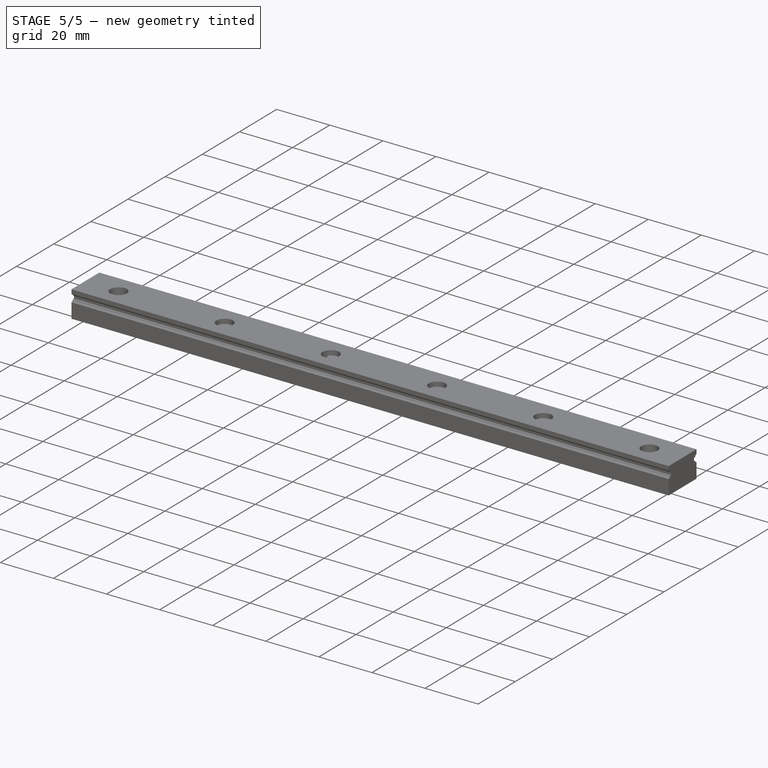
[diagram: stage 5 of 5 — iso view after this stage's code; geometry added in this stage tinted green]
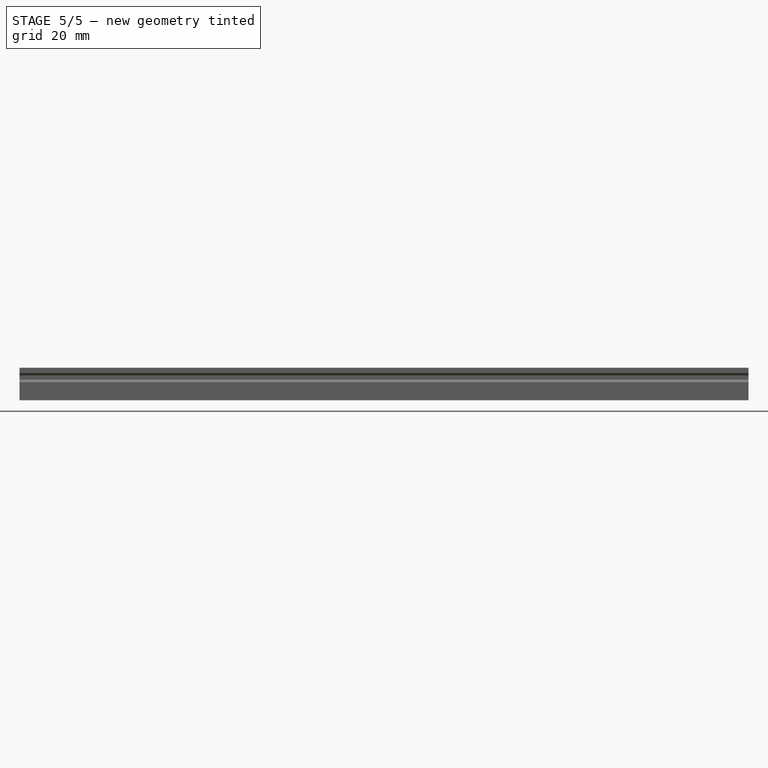
[diagram: stage 5 of 5 — front view after this stage's code; geometry added in this stage tinted green]
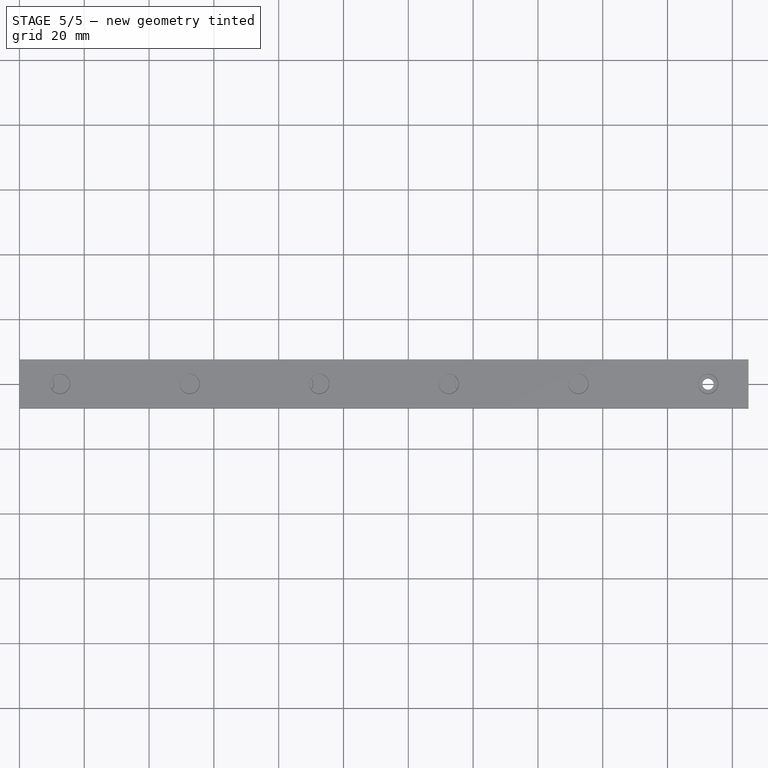
[diagram: stage 5 of 5 — top view after this stage's code; geometry added in this stage tinted green]
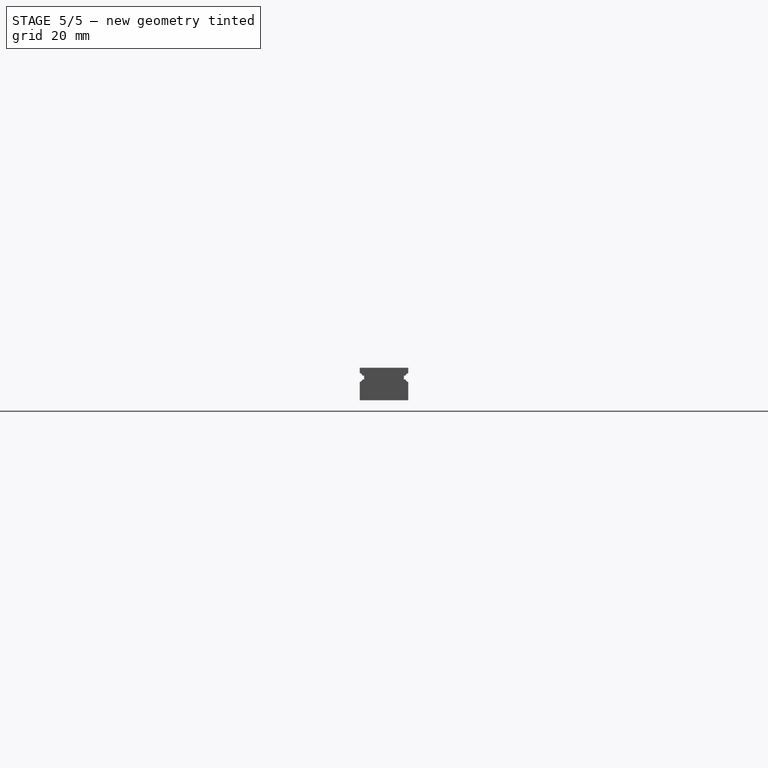
[diagram: stage 5 of 5 — right view after this stage's code; geometry added in this stage tinted green]
FEATURE [Sketcher::SketchObject] Sketch005
  FullyConstrained = true
  MapMode = 5
  Placement = pos=(0,0,0) rot=(-0.57735,0.57735,0.57735;4.18879rad)
  Support = -> [YZ_Plane002]
  expr: Constraints[13] = 6.5 - 1.8
  expr: Constraints[14] = <<Sketch004>>.Constraints.width / 2 + 0.1mm
  sketch-geometry (10):
    g0: ArcOfCircle CenterX=-4.6 CenterY=4.7 CenterZ=0 NormalX=0 NormalY=0 NormalZ=1 AngleXU=0 Radius=1 StartAngle=0.25268 EndAngle=6.03051
    g1: LineSegment StartX=-3.63175 StartY=4.95 StartZ=0 EndX=-3.13175 EndY=4.95 EndZ=0
    g2: LineSegment StartX=-3.13175 StartY=4.95 StartZ=0 EndX=-3.13175 EndY=4.45 EndZ=0
    g3: LineSegment StartX=-3.13175 StartY=4.45 StartZ=0 EndX=-3.63175 EndY=4.45 EndZ=0
    g4: LineSegment StartX=-4.6 StartY=4.7 StartZ=0 EndX=-3.13175 EndY=4.7 EndZ=0
    g5: ArcOfCircle CenterX=4.6 CenterY=4.7 CenterZ=0 NormalX=0 NormalY=0 NormalZ=1 AngleXU=0 Radius=1 StartAngle=3.39427 EndAngle=9.1721
    g6: LineSegment StartX=3.63175 StartY=4.95 StartZ=0 EndX=3.13175 EndY=4.95 EndZ=0
    g7: LineSegment StartX=3.13175 StartY=4.95 StartZ=0 EndX=3.13175 EndY=4.45 EndZ=0
    g8: LineSegment StartX=3.13175 StartY=4.45 StartZ=0 EndX=3.63175 EndY=4.45 EndZ=0
    g9: LineSegment StartX=4.6 StartY=4.7 StartZ=0 EndX=3.13175 EndY=4.7 EndZ=0
  constraints (29):
    c: Horizontal(g1)
    c: Coincident(g2,g1)
    c: Vertical(g2)
    c: Coincident(g3,g2)
    c: Horizontal(g3)
    c: Coincident(g4,g0)
    c: Horizontal(g4)
    c: Symmetric(g2,g1,g4)
    c: Coincident(g0,g3)
    c: Coincident(g0,g1)
    c: DistanceY(g2,g2) = 0.5
    c: DistanceX(g1,g1) = 0.5
    c: Diameter(g0) = 2
    c: DistanceY(g-1,g0) = 4.7
    c: DistanceX(g0,g-1) = 4.6
    c: Horizontal(g6)
    c: Coincident(g7,g6)
    c: Vertical(g7)
    c: Coincident(g8,g7)
    c: Horizontal(g8)
    c: Coincident(g9,g5)
    c: Horizontal(g9)
    c: Symmetric(g7,g6,g9)
    c: Coincident(g5,g8)
    c: Coincident(g5,g6)
    c: Diameter(g5) = 2
    c: Symmetric(g4,g9,g-2)
    c: Equal(g2,g7)
    c: Equal(g1,g6)
FEATURE [PartDesign::Pocket] Pocket005  label="Balls cut"
  BaseFeature = -> Pad004
  Direction = (1,-2e-16,3e-16)
  Length = 5
  Length2 = 5
  Placement = pos=(0,0,0) rot=(0.57735,0.57735,0.57735;2.0944rad)
  Profile = -> Sketch005
  ReferenceAxis = -> Sketch005 [N_Axis]
  Type = 1
FEATURE [Sketcher::SketchObject] Sketch006
  AttachmentOffset = pos=(7.5,0,0) rot=(0,0,1;1.5708rad)
  FullyConstrained = true
  MapMode = 5
  Placement = pos=(7.5,0,0) rot=(0,0,1;1.5708rad)
  Support = -> [XY_Plane002]
  expr: .AttachmentOffset.Base.x = Spreadsheet001.offset
  sketch-geometry (1):
    g0: Circle CenterX=0 CenterY=0 CenterZ=0 NormalX=0 NormalY=0 NormalZ=1 AngleXU=0 Radius=1.75
  constraints (2):
    c: Coincident(g0,g-1)
    c: Diameter(g0) = 3.5
FEATURE [PartDesign::Pocket] Pocket006  label="Screw hole"
  BaseFeature = -> Pocket005
  Direction = (0,0,-1)
  Length = 5
  Length2 = 5
  Midplane = true
  Placement = pos=(0,0,0) rot=(0.57735,0.57735,0.57735;2.0944rad)
  Profile = -> Sketch006
  ReferenceAxis = -> Sketch006 [N_Axis]
  Type = 1
FEATURE [Spreadsheet::Sheet] Spreadsheet001  label="Spreadsheet_MGN9"
  cells = A1=Length rail; B1=Длина рельсы, мм; C1(length)=175; A2=Holes distance; B2=Расстояние между отверстиями; C2(holes_distance)=20; A3=Holes number; B3=Количество отверстий; C3(holes_number)==floor((length - min_offset * 2) / holes_distance) + 1; A4=Distance end holes; B4=Расстояние между центрами крайних отверстий; C4(distance)==holes_distance * (holes_number - 1); A5=Offset 1st hole; B5=Позиция 1го отверстия; C5(offset)==(length - distance) / 2; A6=Min offset 1st hole; B6=Минимальное расстояние от края до центра 1го отверстия; C6(min_offset)=5
FEATURE [App::TextDocument] Text_document002  label="Description_MGN9"
FEATURE [App::TextDocument] Text_document003  label="Описание_MGN9"
  Text = https://uni3d.store/viewtopic.php?p=1476#p1476\n\nРасшифровка маркировки кареток (линейных подшипников) HIWIN MGN9HZ0HM:\n	Серия: MGN – каретка миниатюрной рельсовой направляющей;\n	Типоразмер: 9 (под ширину рельсовой направляющей 9 мм);\n	Тип каретки: H – длинная; базовая динамическая нагрузка C - 2,55 kN, базовая статическая нагрузка C0 - 4,02 kN;\n	Натяг: Z0 – очень легкий (равен 0);\n	Класс точности: H\n	Исполнение каретки: M – нержавеющая сталь.\n\n\nРасшифровка маркировки рельс (линейных направляющих) HIWIN MGNR9R1200HM:\n	Серия: MGN\n	Взаимозаменяемая направляющая\n	Типоразмер: 9\n	R1200 - длина направляющей 1200 мм\n	Класс точности: H\n	Исполнение: M – нержавеющая сталь
FEATURE [Sketcher::SketchObject] Sketch007
  AttachmentOffset = pos=(7.5,0,6.5) rot=(0,0,1;1.5708rad)
  FullyConstrained = true
  MapMode = 5
  Placement = pos=(7.5,0,6.5) rot=(0,0,1;1.5708rad)
  Support = -> [XY_Plane002]
  expr: .AttachmentOffset.Base.x = Spreadsheet001.offset
  expr: .AttachmentOffset.Base.z = Sketch004.Constraints.height
  sketch-geometry (1):
    g0: Circle CenterX=0 CenterY=0 CenterZ=0 NormalX=0 NormalY=0 NormalZ=1 AngleXU=0 Radius=3
  constraints (2):
    c: Coincident(g0,g-1)
    c: Diameter(g0) = 6
FEATURE [PartDesign::Pocket] Pocket007  label="Screw head cut"
  BaseFeature = -> Pocket006
  Direction = (0,0,-1)
  Length = 3.5
  Length2 = 5
  Placement = pos=(0,0,0) rot=(0.57735,0.57735,0.57735;2.0944rad)
  Profile = -> Sketch007
  ReferenceAxis = -> Sketch007 [N_Axis]
  Type = 0
FEATURE [PartDesign::Chamfer] Chamfer001  label="Chamfer"
  Angle = 45
  Base = -> Pocket007 [Edge47]
  BaseFeature = -> Pocket007
  ChamferType = 0
  FlipDirection = false
  Placement = pos=(0,0,0) rot=(0.57735,0.57735,0.57735;2.0944rad)
  Size = 0.2
  Size2 = 1
  SupportTransform = false
  UseAllEdges = false
FEATURE [PartDesign::LinearPattern] LinearPattern001  label="LinearPattern"
  BaseFeature = -> Chamfer001
  Direction = -> Sketch006 [V_Axis]
  Length = 160
  Occurrences = 9
  Originals = -> [Pocket006,Pocket007,Chamfer001]
  Placement = pos=(0,0,0) rot=(0.57735,0.57735,0.57735;2.0944rad)
  Reversed = true
  expr: Length = Spreadsheet001.distance
  expr: Occurrences = Spreadsheet001.holes_number
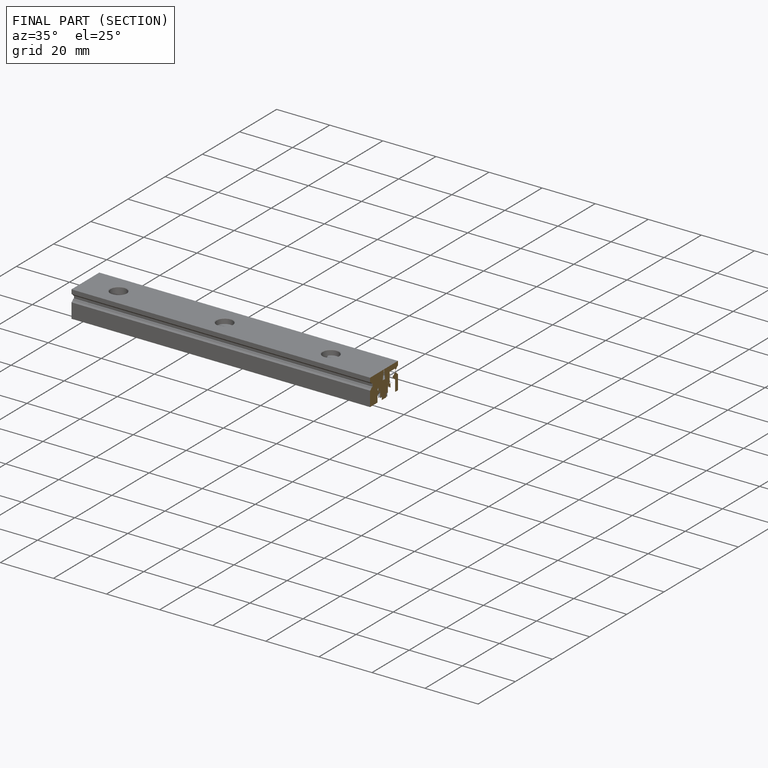
[diagram: finished part — half-section view (interior)]
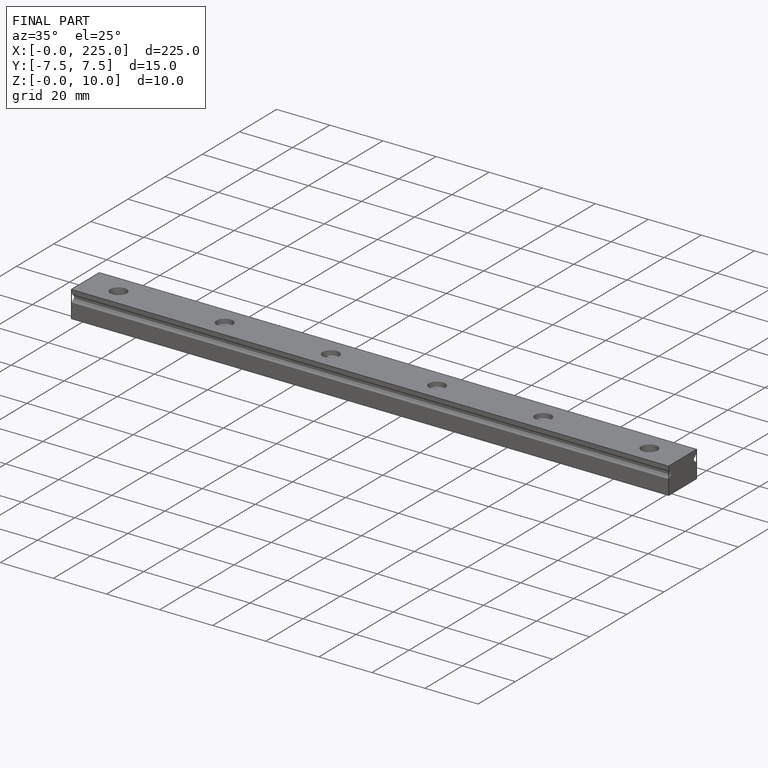
[diagram: finished part — iso view with bounding-box wireframe]
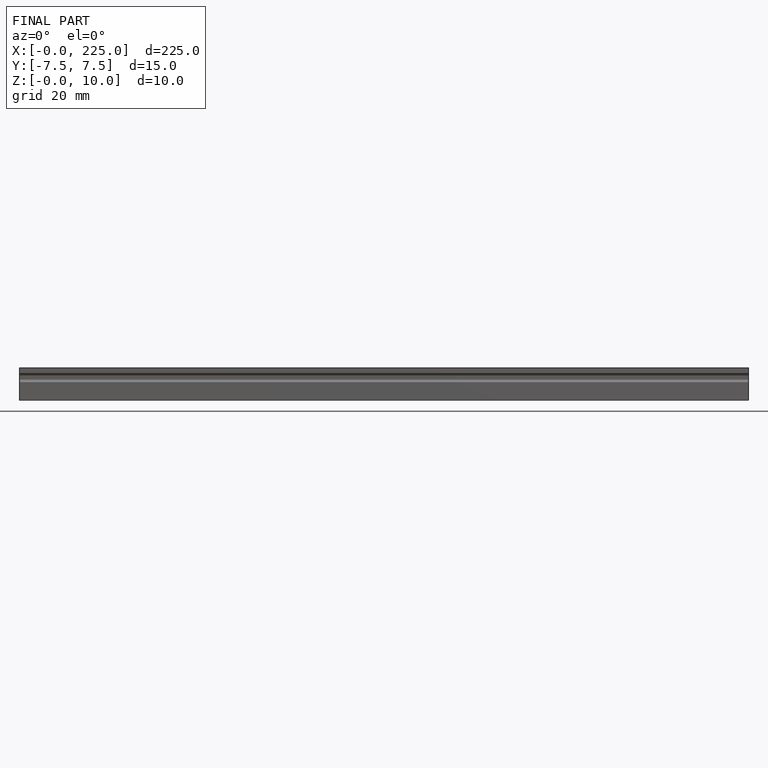
[diagram: finished part — front view with bounding-box wireframe]
